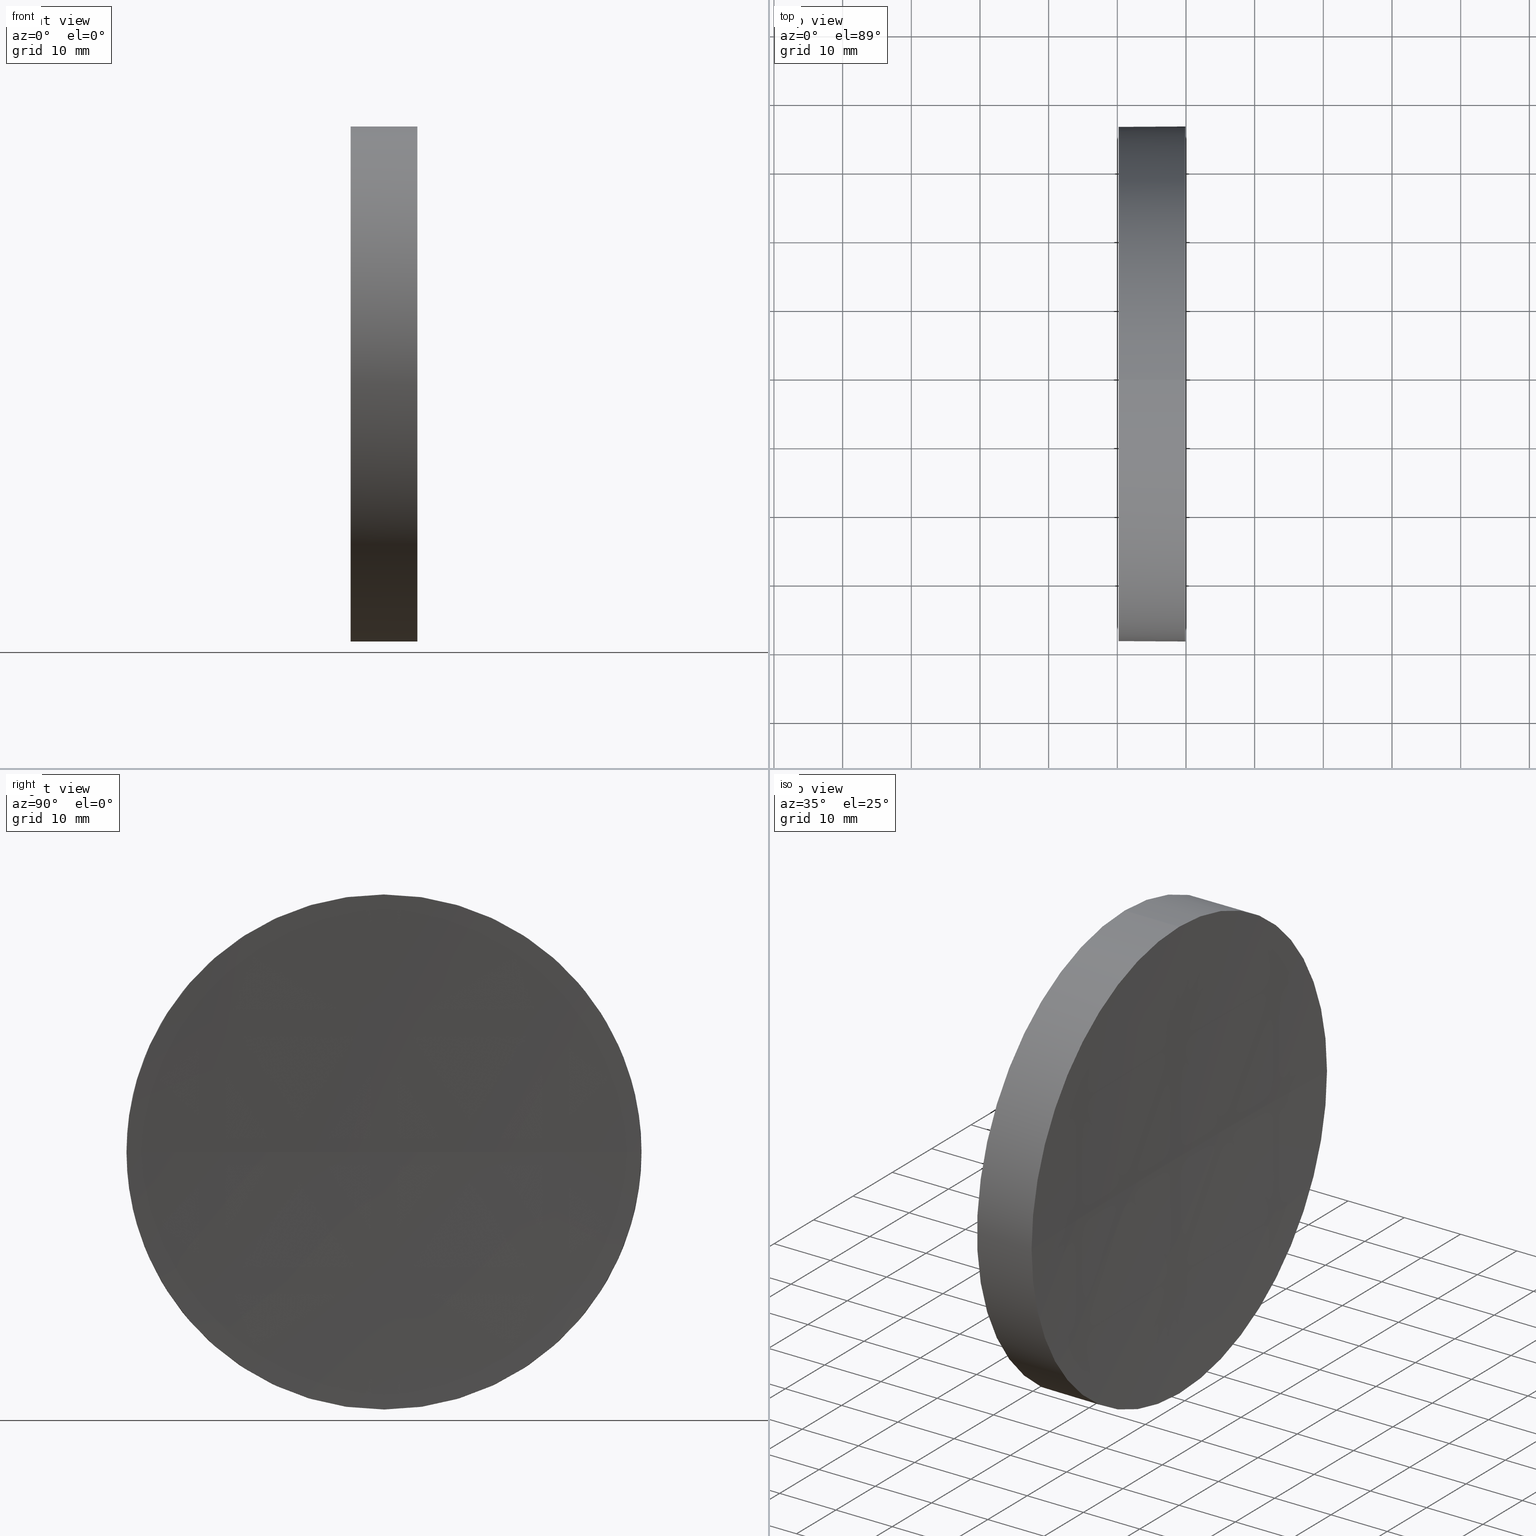
[diagram: canonical four-view strip — front | top / right | iso, engineering-drawing reading convention]
A machine part, canonical four-view strip (front | top / right | iso — engineering-drawing reading convention). The complete STEP part file that produces these views, byte-faithful:
ISO-10303-21;
HEADER;
FILE_DESCRIPTION (( 'STEP AP214' ),
    '1' );
FILE_NAME ('270064.STEP',
    '2019-07-23T08:56:57',
    ( '' ),
    ( '' ),
    'SwSTEP 2.0',
    'SolidWorks 2016',
    '' );
FILE_SCHEMA (( 'AUTOMOTIVE_DESIGN' ));
ENDSEC;

DATA;
#1 = CARTESIAN_POINT ( 'NONE',  ( 239.9029842799563700, 176.2560422467439600, 4.592425496802413400E-015 ) ) ;
#2 = EDGE_CURVE ( 'NONE', #143, #42, #85, .T. ) ;
#3 = CARTESIAN_POINT ( 'NONE',  ( 217.9702860043302100, 138.7560422467448700, -37.50000000000000700 ) ) ;
#4 = CARTESIAN_POINT ( 'NONE',  ( 1239.199611913613600, 138.7560422467452700, 0.0000000000000000000 ) ) ;
#5 = CARTESIAN_POINT ( 'NONE',  ( 0.0000000000000000000, 0.0000000000000000000, 0.0000000000000000000 ) ) ;
#6 = EDGE_CURVE ( 'NONE', #42, #91, #179, .T. ) ;
#7 = PRESENTATION_STYLE_ASSIGNMENT (( #180 ) ) ;
#8 = AXIS2_PLACEMENT_3D ( 'NONE', #165, #16, #30 ) ;
#9 = FACE_OUTER_BOUND ( 'NONE', #40, .T. ) ;
#10 = DIRECTION ( 'NONE',  ( 0.0000000000000000000, 0.0000000000000000000, 1.000000000000000000 ) ) ;
#11 = CARTESIAN_POINT ( 'NONE',  ( 239.9029842799563700, 101.2560422467461900, 0.0000000000000000000 ) ) ;
#12 = CARTESIAN_POINT ( 'NONE',  ( 239.9029842799564000, 138.7560422467448700, 0.0000000000000000000 ) ) ;
#13 = UNCERTAINTY_MEASURE_WITH_UNIT (LENGTH_MEASURE( 1.000000000000000100E-005 ), #124, 'distance_accuracy_value', 'NONE');
#14 = CARTESIAN_POINT ( 'NONE',  ( 239.1996119136136100, 138.7560422467452100, 0.0000000000000000000 ) ) ;
#15 = ORIENTED_EDGE ( 'NONE', *, *, #2, .F. ) ;
#16 = DIRECTION ( 'NONE',  ( -1.000000000000000000, -0.0000000000000000000, -0.0000000000000000000 ) ) ;
#17 = CIRCLE ( 'NONE', #93, 37.50000000000000700 ) ;
#18 = APPLICATION_PROTOCOL_DEFINITION ( 'draft international standard', 'automotive_design', 1998, #53 ) ;
#19 = ORIENTED_EDGE ( 'NONE', *, *, #72, .T. ) ;
#20 = PRESENTATION_LAYER_ASSIGNMENT (  '', '', ( #59 ) ) ;
#21 = EDGE_LOOP ( 'NONE', ( #37, #127, #173, #170, #102 ) ) ;
#22 = EDGE_CURVE ( 'NONE', #91, #42, #138, .T. ) ;
#23 = CARTESIAN_POINT ( 'NONE',  ( 230.1996119052661200, 138.7560422467448700, 0.0000000000000000000 ) ) ;
#24 = AXIS2_PLACEMENT_3D ( 'NONE', #4, #31, #162 ) ;
#25 = VERTEX_POINT ( 'NONE', #75 ) ;
#26 = ADVANCED_FACE ( 'NONE', ( #158 ), #144, .F. ) ;
#27 = EDGE_CURVE ( 'NONE', #97, #29, #99, .T. ) ;
#28 = DIRECTION ( 'NONE',  ( 0.0000000000000000000, 0.0000000000000000000, 1.000000000000000000 ) ) ;
#29 = VERTEX_POINT ( 'NONE', #14 ) ;
#30 = DIRECTION ( 'NONE',  ( 0.0000000000000000000, 0.0000000000000000000, 1.000000000000000000 ) ) ;
#31 = DIRECTION ( 'NONE',  ( 0.0000000000000000000, 0.0000000000000000000, 1.000000000000000000 ) ) ;
#32 = ORIENTED_EDGE ( 'NONE', *, *, #90, .T. ) ;
#33 = AXIS2_PLACEMENT_3D ( 'NONE', #106, #105, #152 ) ;
#34 = AXIS2_PLACEMENT_3D ( 'NONE', #23, #41, #61 ) ;
#35 =( NAMED_UNIT ( * ) SI_UNIT ( $, .STERADIAN. ) SOLID_ANGLE_UNIT ( ) );
#36 = DIRECTION ( 'NONE',  ( 0.0000000000000000000, -1.000000000000000000, 0.0000000000000000000 ) ) ;
#37 = ORIENTED_EDGE ( 'NONE', *, *, #81, .F. ) ;
#38 = UNCERTAINTY_MEASURE_WITH_UNIT (LENGTH_MEASURE( 1.000000000000000100E-005 ), #168, 'distance_accuracy_value', 'NONE');
#39 = AXIS2_PLACEMENT_3D ( 'NONE', #89, #121, #28 ) ;
#40 = EDGE_LOOP ( 'NONE', ( #76, #166, #67, #19 ) ) ;
#41 = DIRECTION ( 'NONE',  ( -1.000000000000000000, -0.0000000000000000000, -0.0000000000000000000 ) ) ;
#42 = VERTEX_POINT ( 'NONE', #133 ) ;
#43 = PRODUCT_DEFINITION_CONTEXT ( 'detailed design', #53, 'design' ) ;
#44 = AXIS2_PLACEMENT_3D ( 'NONE', #50, #82, #46 ) ;
#45 = ADVANCED_FACE ( 'NONE', ( #78 ), #123, .T. ) ;
#46 = DIRECTION ( 'NONE',  ( -1.000000000000000000, 0.0000000000000000000, 0.0000000000000000000 ) ) ;
#47 = PRODUCT_DEFINITION_SHAPE ( 'NONE', 'NONE',  #136 ) ;
#48 = DIRECTION ( 'NONE',  ( 0.0000000000000000000, -1.000000000000000000, -1.224646799147353000E-016 ) ) ;
#49 = ORIENTED_EDGE ( 'NONE', *, *, #6, .T. ) ;
#50 = CARTESIAN_POINT ( 'NONE',  ( 1239.199611913613600, 138.7560422467452700, 0.0000000000000000000 ) ) ;
#51 =( GEOMETRIC_REPRESENTATION_CONTEXT ( 3 ) GLOBAL_UNCERTAINTY_ASSIGNED_CONTEXT ( ( #13 ) ) GLOBAL_UNIT_ASSIGNED_CONTEXT ( ( #124, #155, #169 ) ) REPRESENTATION_CONTEXT ( 'NONE', 'WORKASPACE' ) );
#52 = PRODUCT_CONTEXT ( 'NONE', #54, 'mechanical' ) ;
#53 = APPLICATION_CONTEXT ( 'automotive_design' ) ;
#54 = APPLICATION_CONTEXT ( 'automotive_design' ) ;
#55 = PRODUCT_DEFINITION_FORMATION_WITH_SPECIFIED_SOURCE ( '�κ�', '', #159, .NOT_KNOWN. ) ;
#56 = CIRCLE ( 'NONE', #39, 37.50000000000000700 ) ;
#57 = EDGE_CURVE ( 'NONE', #143, #97, #62, .T. ) ;
#58 = MANIFOLD_SOLID_BREP ( '��ת1', #182 ) ;
#59 = STYLED_ITEM ( 'NONE', ( #149 ), #58 ) ;
#60 = SPHERICAL_SURFACE ( 'NONE', #98, 999.9999999999998900 ) ;
#61 = DIRECTION ( 'NONE',  ( 0.0000000000000000000, 0.0000000000000000000, 1.000000000000000000 ) ) ;
#62 = CIRCLE ( 'NONE', #119, 37.50000000000000700 ) ;
#63 = FACE_OUTER_BOUND ( 'NONE', #172, .T. ) ;
#64 = CARTESIAN_POINT ( 'NONE',  ( 230.1996119052661200, 138.7560422467448700, 0.0000000000000000000 ) ) ;
#65 = DIRECTION ( 'NONE',  ( 0.0000000000000000000, 0.0000000000000000000, 1.000000000000000000 ) ) ;
#66 = DIRECTION ( 'NONE',  ( -1.000000000000000000, -0.0000000000000000000, -0.0000000000000000000 ) ) ;
#67 = ORIENTED_EDGE ( 'NONE', *, *, #183, .F. ) ;
#68 = PRODUCT_RELATED_PRODUCT_CATEGORY ( 'part', '', ( #159 ) ) ;
#69 = DIRECTION ( 'NONE',  ( 0.0000000000000000000, 0.0000000000000000000, 1.000000000000000000 ) ) ;
#70 = MECHANICAL_DESIGN_GEOMETRIC_PRESENTATION_REPRESENTATION (  '', ( #110 ), #51 ) ;
#71 = ORIENTED_EDGE ( 'NONE', *, *, #81, .T. ) ;
#72 = EDGE_CURVE ( 'NONE', #111, #29, #94, .T. ) ;
#73 = COLOUR_RGB ( '',1.000000000000000000, 1.000000000000000000, 1.000000000000000000 ) ;
#74 = UNCERTAINTY_MEASURE_WITH_UNIT (LENGTH_MEASURE( 1.000000000000000100E-005 ), #134, 'distance_accuracy_value', 'NONE');
#75 = CARTESIAN_POINT ( 'NONE',  ( 239.9029842799564000, 138.7560422467448700, -37.50000000000000700 ) ) ;
#76 = ORIENTED_EDGE ( 'NONE', *, *, #27, .F. ) ;
#77 = CARTESIAN_POINT ( 'NONE',  ( 239.9029842799564000, 138.7560422467448700, 0.0000000000000000000 ) ) ;
#78 = FACE_OUTER_BOUND ( 'NONE', #21, .T. ) ;
#79 = SURFACE_SIDE_STYLE ('',( #156 ) ) ;
#80 = CARTESIAN_POINT ( 'NONE',  ( 230.1996119052661200, 138.7560422467448700, -37.50000000000000700 ) ) ;
#81 = EDGE_CURVE ( 'NONE', #25, #91, #139, .T. ) ;
#82 = DIRECTION ( 'NONE',  ( 0.0000000000000000000, 0.0000000000000000000, -1.000000000000000000 ) ) ;
#83 =( GEOMETRIC_REPRESENTATION_CONTEXT ( 3 ) GLOBAL_UNCERTAINTY_ASSIGNED_CONTEXT ( ( #74 ) ) GLOBAL_UNIT_ASSIGNED_CONTEXT ( ( #134, #92, #176 ) ) REPRESENTATION_CONTEXT ( 'NONE', 'WORKASPACE' ) );
#84 = SURFACE_SIDE_STYLE ('',( #151 ) ) ;
#85 = LINE ( 'NONE', #160, #132 ) ;
#86 = ORIENTED_EDGE ( 'NONE', *, *, #22, .T. ) ;
#87 = PRESENTATION_LAYER_ASSIGNMENT (  '', '', ( #110 ) ) ;
#88 = AXIS2_PLACEMENT_3D ( 'NONE', #64, #109, #122 ) ;
#89 = CARTESIAN_POINT ( 'NONE',  ( 239.9029842799564000, 138.7560422467448700, 0.0000000000000000000 ) ) ;
#90 = EDGE_CURVE ( 'NONE', #97, #25, #56, .T. ) ;
#91 = VERTEX_POINT ( 'NONE', #80 ) ;
#92 =( NAMED_UNIT ( * ) PLANE_ANGLE_UNIT ( ) SI_UNIT ( $, .RADIAN. ) );
#93 = AXIS2_PLACEMENT_3D ( 'NONE', #12, #66, #10 ) ;
#94 = CIRCLE ( 'NONE', #44, 999.9999999999998900 ) ;
#95 = DIRECTION ( 'NONE',  ( 0.0000000000000000000, 0.0000000000000000000, 1.000000000000000000 ) ) ;
#96 = EDGE_CURVE ( 'NONE', #25, #111, #17, .T. ) ;
#97 = VERTEX_POINT ( 'NONE', #1 ) ;
#98 = AXIS2_PLACEMENT_3D ( 'NONE', #150, #108, #36 ) ;
#99 = CIRCLE ( 'NONE', #145, 1000.000000000000000 ) ;
#100 = VECTOR ( 'NONE', #177, 1000.000000000000000 ) ;
#101 = DIRECTION ( 'NONE',  ( -1.000000000000000000, -0.0000000000000000000, -0.0000000000000000000 ) ) ;
#102 = ORIENTED_EDGE ( 'NONE', *, *, #22, .F. ) ;
#103 = AXIS2_PLACEMENT_3D ( 'NONE', #113, #112, #69 ) ;
#104 = ADVANCED_FACE ( 'NONE', ( #63 ), #129, .T. ) ;
#105 = DIRECTION ( 'NONE',  ( -1.000000000000000000, -0.0000000000000000000, -0.0000000000000000000 ) ) ;
#106 = CARTESIAN_POINT ( 'NONE',  ( 217.9702860043302100, 138.7560422467448700, 0.0000000000000000000 ) ) ;
#107 = ORIENTED_EDGE ( 'NONE', *, *, #27, .T. ) ;
#108 = DIRECTION ( 'NONE',  ( 0.0000000000000000000, 0.0000000000000000000, 1.000000000000000000 ) ) ;
#109 = DIRECTION ( 'NONE',  ( 1.000000000000000000, 0.0000000000000000000, 0.0000000000000000000 ) ) ;
#110 = STYLED_ITEM ( 'NONE', ( #7 ), #171 ) ;
#111 = VERTEX_POINT ( 'NONE', #11 ) ;
#112 = DIRECTION ( 'NONE',  ( -1.000000000000000000, -0.0000000000000000000, -0.0000000000000000000 ) ) ;
#113 = CARTESIAN_POINT ( 'NONE',  ( 239.9029842799564000, 138.7560422467448700, 0.0000000000000000000 ) ) ;
#114 =( NAMED_UNIT ( * ) PLANE_ANGLE_UNIT ( ) SI_UNIT ( $, .RADIAN. ) );
#115 = ORIENTED_EDGE ( 'NONE', *, *, #90, .F. ) ;
#116 = ORIENTED_EDGE ( 'NONE', *, *, #6, .F. ) ;
#117 =( GEOMETRIC_REPRESENTATION_CONTEXT ( 3 ) GLOBAL_UNCERTAINTY_ASSIGNED_CONTEXT ( ( #38 ) ) GLOBAL_UNIT_ASSIGNED_CONTEXT ( ( #168, #114, #35 ) ) REPRESENTATION_CONTEXT ( 'NONE', 'WORKASPACE' ) );
#118 = DIRECTION ( 'NONE',  ( -1.000000000000000000, -0.0000000000000000000, -0.0000000000000000000 ) ) ;
#119 = AXIS2_PLACEMENT_3D ( 'NONE', #77, #178, #65 ) ;
#120 = FILL_AREA_STYLE ('',( #167 ) ) ;
#121 = DIRECTION ( 'NONE',  ( -1.000000000000000000, -0.0000000000000000000, -0.0000000000000000000 ) ) ;
#122 = DIRECTION ( 'NONE',  ( 0.0000000000000000000, 0.0000000000000000000, -1.000000000000000000 ) ) ;
#123 = CYLINDRICAL_SURFACE ( 'NONE', #8, 37.50000000000000700 ) ;
#124 =( LENGTH_UNIT ( ) NAMED_UNIT ( * ) SI_UNIT ( .MILLI., .METRE. ) );
#125 = FILL_AREA_STYLE_COLOUR ( '', #73 ) ;
#126 = APPLICATION_PROTOCOL_DEFINITION ( 'draft international standard', 'automotive_design', 1998, #54 ) ;
#127 = ORIENTED_EDGE ( 'NONE', *, *, #96, .T. ) ;
#128 = AXIS2_PLACEMENT_3D ( 'NONE', #5, #95, #135 ) ;
#129 = CYLINDRICAL_SURFACE ( 'NONE', #33, 37.50000000000000700 ) ;
#130 = ORIENTED_EDGE ( 'NONE', *, *, #96, .F. ) ;
#131 = CARTESIAN_POINT ( 'NONE',  ( 239.9029842799564000, 138.7560422467448700, 37.50000000000000700 ) ) ;
#132 = VECTOR ( 'NONE', #118, 1000.000000000000000 ) ;
#133 = CARTESIAN_POINT ( 'NONE',  ( 230.1996119052661200, 138.7560422467448700, 37.50000000000000700 ) ) ;
#134 =( LENGTH_UNIT ( ) NAMED_UNIT ( * ) SI_UNIT ( .MILLI., .METRE. ) );
#135 = DIRECTION ( 'NONE',  ( 1.000000000000000000, 0.0000000000000000000, 0.0000000000000000000 ) ) ;
#136 = PRODUCT_DEFINITION ( 'δ֪', '', #55, #43 ) ;
#137 = FILL_AREA_STYLE ('',( #125 ) ) ;
#138 = CIRCLE ( 'NONE', #34, 37.50000000000000700 ) ;
#139 = LINE ( 'NONE', #3, #100 ) ;
#140 = ORIENTED_EDGE ( 'NONE', *, *, #72, .F. ) ;
#141 = ORIENTED_EDGE ( 'NONE', *, *, #57, .T. ) ;
#142 = FACE_OUTER_BOUND ( 'NONE', #185, .T. ) ;
#143 = VERTEX_POINT ( 'NONE', #131 ) ;
#144 = PLANE ( 'NONE',  #88 ) ;
#145 = AXIS2_PLACEMENT_3D ( 'NONE', #148, #163, #48 ) ;
#146 = SURFACE_STYLE_USAGE ( .BOTH. , #79 ) ;
#147 = ADVANCED_FACE ( 'NONE', ( #9 ), #174, .F. ) ;
#148 = CARTESIAN_POINT ( 'NONE',  ( 1239.199611913613600, 138.7560422467452700, 0.0000000000000000000 ) ) ;
#149 = PRESENTATION_STYLE_ASSIGNMENT (( #146 ) ) ;
#150 = CARTESIAN_POINT ( 'NONE',  ( 1239.199611913613600, 138.7560422467452700, 0.0000000000000000000 ) ) ;
#151 = SURFACE_STYLE_FILL_AREA ( #137 ) ;
#152 = DIRECTION ( 'NONE',  ( 0.0000000000000000000, 0.0000000000000000000, 1.000000000000000000 ) ) ;
#153 = EDGE_LOOP ( 'NONE', ( #49, #86 ) ) ;
#154 = SHAPE_DEFINITION_REPRESENTATION ( #47, #171 ) ;
#155 =( NAMED_UNIT ( * ) PLANE_ANGLE_UNIT ( ) SI_UNIT ( $, .RADIAN. ) );
#156 = SURFACE_STYLE_FILL_AREA ( #120 ) ;
#157 = MECHANICAL_DESIGN_GEOMETRIC_PRESENTATION_REPRESENTATION (  '', ( #59 ), #83 ) ;
#158 = FACE_OUTER_BOUND ( 'NONE', #153, .T. ) ;
#159 = PRODUCT ( '270064', '270064', '', ( #52 ) ) ;
#160 = CARTESIAN_POINT ( 'NONE',  ( 217.9702860043302100, 138.7560422467448700, 37.50000000000000700 ) ) ;
#161 = ADVANCED_FACE ( 'NONE', ( #142 ), #60, .F. ) ;
#162 = DIRECTION ( 'NONE',  ( 0.0000000000000000000, -1.000000000000000000, 0.0000000000000000000 ) ) ;
#163 = DIRECTION ( 'NONE',  ( 0.0000000000000000000, -1.224646799147353200E-016, 1.000000000000000000 ) ) ;
#164 = CIRCLE ( 'NONE', #103, 37.50000000000000700 ) ;
#165 = CARTESIAN_POINT ( 'NONE',  ( 217.9702860043302100, 138.7560422467448700, 0.0000000000000000000 ) ) ;
#166 = ORIENTED_EDGE ( 'NONE', *, *, #57, .F. ) ;
#167 = FILL_AREA_STYLE_COLOUR ( '', #181 ) ;
#168 =( LENGTH_UNIT ( ) NAMED_UNIT ( * ) SI_UNIT ( .MILLI., .METRE. ) );
#169 =( NAMED_UNIT ( * ) SI_UNIT ( $, .STERADIAN. ) SOLID_ANGLE_UNIT ( ) );
#170 = ORIENTED_EDGE ( 'NONE', *, *, #2, .T. ) ;
#171 = ADVANCED_BREP_SHAPE_REPRESENTATION ( '270064', ( #58, #128 ), #117 ) ;
#172 = EDGE_LOOP ( 'NONE', ( #32, #71, #116, #15, #141 ) ) ;
#173 = ORIENTED_EDGE ( 'NONE', *, *, #183, .T. ) ;
#174 = SPHERICAL_SURFACE ( 'NONE', #24, 999.9999999999998900 ) ;
#175 = AXIS2_PLACEMENT_3D ( 'NONE', #184, #101, #186 ) ;
#176 =( NAMED_UNIT ( * ) SI_UNIT ( $, .STERADIAN. ) SOLID_ANGLE_UNIT ( ) );
#177 = DIRECTION ( 'NONE',  ( -1.000000000000000000, -0.0000000000000000000, -0.0000000000000000000 ) ) ;
#178 = DIRECTION ( 'NONE',  ( -1.000000000000000000, -0.0000000000000000000, -0.0000000000000000000 ) ) ;
#179 = CIRCLE ( 'NONE', #175, 37.50000000000000700 ) ;
#180 = SURFACE_STYLE_USAGE ( .BOTH. , #84 ) ;
#181 = COLOUR_RGB ( '',1.000000000000000000, 1.000000000000000000, 1.000000000000000000 ) ;
#182 = CLOSED_SHELL ( 'NONE', ( #104, #161, #147, #45, #26 ) ) ;
#183 = EDGE_CURVE ( 'NONE', #111, #143, #164, .T. ) ;
#184 = CARTESIAN_POINT ( 'NONE',  ( 230.1996119052661200, 138.7560422467448700, 0.0000000000000000000 ) ) ;
#185 = EDGE_LOOP ( 'NONE', ( #115, #107, #140, #130 ) ) ;
#186 = DIRECTION ( 'NONE',  ( 0.0000000000000000000, 0.0000000000000000000, 1.000000000000000000 ) ) ;
ENDSEC;
END-ISO-10303-21;
